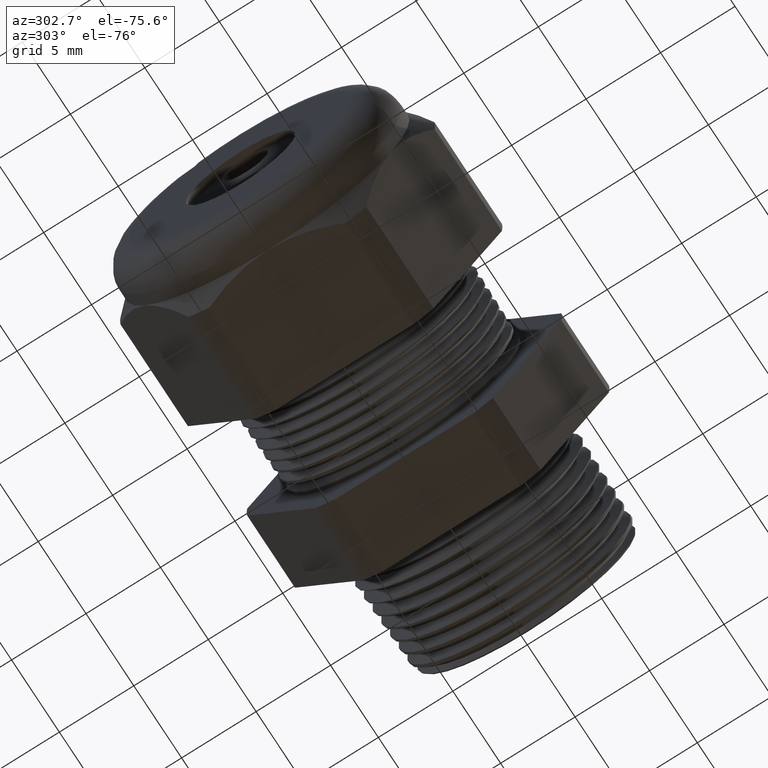
[diagram: clean part render]
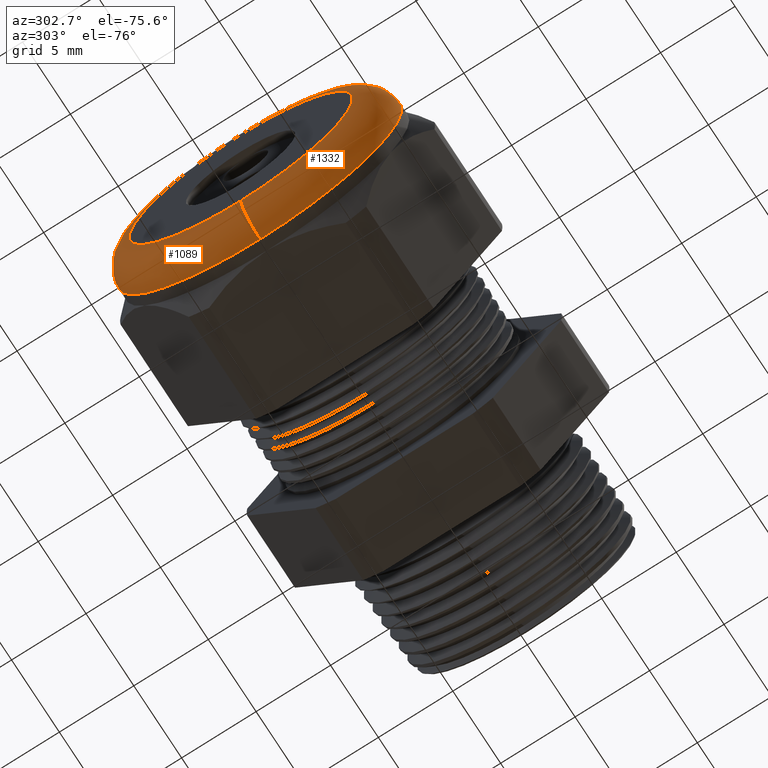
[diagram: same view with one multi-face feature highlighted, each face labeled with its STEP entity id]
A machine part, auxiliary view. The highlighted faces form ONE feature: a constant-radius fillet chain: 2 tangent blend faces with common blend radius 2.032 mm. The faces share edges in the B-rep.
Their STEP definitions:
[1] entity #1332 (Torus):
#1016 = EDGE_CURVE ( 'NONE', #1078, #1084, #3288, .T. ) ;
#1078 = VERTEX_POINT ( 'NONE', #3419 ) ;
#1083 = VERTEX_POINT ( 'NONE', #3412 ) ;
#1084 = VERTEX_POINT ( 'NONE', #3411 ) ;
#1090 = VERTEX_POINT ( 'NONE', #3455 ) ;
#1095 = EDGE_CURVE ( 'NONE', #1090, #1083, #3449, .T. ) ;
#1098 = EDGE_CURVE ( 'NONE', #1083, #1084, #3442, .T. ) ;
#1159 = EDGE_CURVE ( 'NONE', #1078, #1090, #3537, .T. ) ;
#1253 = EDGE_LOOP ( 'NONE', ( #1254, #1255, #1256, #1315 ) ) ;
#1254 = ORIENTED_EDGE ( 'NONE', *, *, #1095, .F. ) ;
#1255 = ORIENTED_EDGE ( 'NONE', *, *, #1159, .F. ) ;
#1256 = ORIENTED_EDGE ( 'NONE', *, *, #1016, .T. ) ;
#1315 = ORIENTED_EDGE ( 'NONE', *, *, #1098, .F. ) ;
#1332 = ADVANCED_FACE ( 'NONE', ( #3814 ), #3813, .T. ) ;
#3284 = DIRECTION ( 'NONE',  ( 0.0000000000000000000, 0.0000000000000000000, -1.000000000000000000 ) ) ;
#3285 = DIRECTION ( 'NONE',  ( 0.0000000000000000000, -1.000000000000000000, 0.0000000000000000000 ) ) ;
#3286 = CARTESIAN_POINT ( 'NONE',  ( -1.100000000000000100, 0.0000000000000000000, 0.2950000000000001000 ) ) ;
#3287 = AXIS2_PLACEMENT_3D ( 'NONE', #3286, #3285, #3284 ) ;
#3288 = CIRCLE ( 'NONE', #3287, 0.08000000000000000200 ) ;
#3411 = CARTESIAN_POINT ( 'NONE',  ( -1.179999999999999900, 0.0000000000000000000, 0.2950000000000001000 ) ) ;
#3412 = CARTESIAN_POINT ( 'NONE',  ( -1.179999999999999900, 4.102566777143634000E-017, -0.2950000000000001000 ) ) ;
#3419 = CARTESIAN_POINT ( 'NONE',  ( -1.100000000000000100, 4.592425496802576100E-017, 0.3750000000000001100 ) ) ;
#3438 = DIRECTION ( 'NONE',  ( 0.0000000000000000000, 0.0000000000000000000, 1.000000000000000000 ) ) ;
#3439 = DIRECTION ( 'NONE',  ( -1.000000000000000000, 0.0000000000000000000, 0.0000000000000000000 ) ) ;
#3440 = CARTESIAN_POINT ( 'NONE',  ( -1.179999999999999900, 0.0000000000000000000, 0.0000000000000000000 ) ) ;
#3441 = AXIS2_PLACEMENT_3D ( 'NONE', #3440, #3439, #3438 ) ;
#3442 = CIRCLE ( 'NONE', #3441, 0.2950000000000001000 ) ;
#3445 = DIRECTION ( 'NONE',  ( 0.0000000000000000000, -1.224646799147353500E-016, 1.000000000000000000 ) ) ;
#3446 = DIRECTION ( 'NONE',  ( 0.0000000000000000000, 1.000000000000000000, 1.224646799147353200E-016 ) ) ;
#3447 = CARTESIAN_POINT ( 'NONE',  ( -1.100000000000000100, 3.612708057484693200E-017, -0.2950000000000001000 ) ) ;
#3448 = AXIS2_PLACEMENT_3D ( 'NONE', #3447, #3446, #3445 ) ;
#3449 = CIRCLE ( 'NONE', #3448, 0.08000000000000000200 ) ;
#3455 = CARTESIAN_POINT ( 'NONE',  ( -1.100000000000000100, 0.0000000000000000000, -0.3750000000000001100 ) ) ;
#3533 = DIRECTION ( 'NONE',  ( 0.0000000000000000000, 0.0000000000000000000, 1.000000000000000000 ) ) ;
#3534 = DIRECTION ( 'NONE',  ( 1.000000000000000000, 0.0000000000000000000, 0.0000000000000000000 ) ) ;
#3535 = CARTESIAN_POINT ( 'NONE',  ( -1.100000000000000100, 0.0000000000000000000, 0.0000000000000000000 ) ) ;
#3536 = AXIS2_PLACEMENT_3D ( 'NONE', #3535, #3534, #3533 ) ;
#3537 = CIRCLE ( 'NONE', #3536, 0.3750000000000001100 ) ;
#3810 = DIRECTION ( 'NONE',  ( 0.0000000000000000000, 0.0000000000000000000, 1.000000000000000000 ) ) ;
#3811 = DIRECTION ( 'NONE',  ( -1.000000000000000000, 0.0000000000000000000, 0.0000000000000000000 ) ) ;
#3812 = AXIS2_PLACEMENT_3D ( 'NONE', #3818, #3811, #3810 ) ;
#3813 = TOROIDAL_SURFACE ( 'NONE', #3812, 0.2950000000000001000, 0.08000000000000000200 ) ;
#3814 = FACE_OUTER_BOUND ( 'NONE', #1253, .T. ) ;
#3818 = CARTESIAN_POINT ( 'NONE',  ( -1.100000000000000100, 0.0000000000000000000, 0.0000000000000000000 ) ) ;
[2] entity #1089 (Torus):
#1015 = ORIENTED_EDGE ( 'NONE', *, *, #1016, .F. ) ;
#1016 = EDGE_CURVE ( 'NONE', #1078, #1084, #3288, .T. ) ;
#1058 = EDGE_LOOP ( 'NONE', ( #1080, #1094, #1092, #1015 ) ) ;
#1078 = VERTEX_POINT ( 'NONE', #3419 ) ;
#1080 = ORIENTED_EDGE ( 'NONE', *, *, #1081, .F. ) ;
#1081 = EDGE_CURVE ( 'NONE', #1090, #1078, #3417, .T. ) ;
#1083 = VERTEX_POINT ( 'NONE', #3412 ) ;
#1084 = VERTEX_POINT ( 'NONE', #3411 ) ;
#1089 = ADVANCED_FACE ( 'NONE', ( #3465 ), #3460, .T. ) ;
#1090 = VERTEX_POINT ( 'NONE', #3455 ) ;
#1092 = ORIENTED_EDGE ( 'NONE', *, *, #1093, .F. ) ;
#1093 = EDGE_CURVE ( 'NONE', #1084, #1083, #3454, .T. ) ;
#1094 = ORIENTED_EDGE ( 'NONE', *, *, #1095, .T. ) ;
#1095 = EDGE_CURVE ( 'NONE', #1090, #1083, #3449, .T. ) ;
#3284 = DIRECTION ( 'NONE',  ( 0.0000000000000000000, 0.0000000000000000000, -1.000000000000000000 ) ) ;
#3285 = DIRECTION ( 'NONE',  ( 0.0000000000000000000, -1.000000000000000000, 0.0000000000000000000 ) ) ;
#3286 = CARTESIAN_POINT ( 'NONE',  ( -1.100000000000000100, 0.0000000000000000000, 0.2950000000000001000 ) ) ;
#3287 = AXIS2_PLACEMENT_3D ( 'NONE', #3286, #3285, #3284 ) ;
#3288 = CIRCLE ( 'NONE', #3287, 0.08000000000000000200 ) ;
#3411 = CARTESIAN_POINT ( 'NONE',  ( -1.179999999999999900, 0.0000000000000000000, 0.2950000000000001000 ) ) ;
#3412 = CARTESIAN_POINT ( 'NONE',  ( -1.179999999999999900, 4.102566777143634000E-017, -0.2950000000000001000 ) ) ;
#3413 = DIRECTION ( 'NONE',  ( 0.0000000000000000000, 0.0000000000000000000, 1.000000000000000000 ) ) ;
#3414 = DIRECTION ( 'NONE',  ( 1.000000000000000000, 0.0000000000000000000, 0.0000000000000000000 ) ) ;
#3415 = CARTESIAN_POINT ( 'NONE',  ( -1.100000000000000100, 0.0000000000000000000, 0.0000000000000000000 ) ) ;
#3416 = AXIS2_PLACEMENT_3D ( 'NONE', #3415, #3414, #3413 ) ;
#3417 = CIRCLE ( 'NONE', #3416, 0.3750000000000001100 ) ;
#3419 = CARTESIAN_POINT ( 'NONE',  ( -1.100000000000000100, 4.592425496802576100E-017, 0.3750000000000001100 ) ) ;
#3445 = DIRECTION ( 'NONE',  ( 0.0000000000000000000, -1.224646799147353500E-016, 1.000000000000000000 ) ) ;
#3446 = DIRECTION ( 'NONE',  ( 0.0000000000000000000, 1.000000000000000000, 1.224646799147353200E-016 ) ) ;
#3447 = CARTESIAN_POINT ( 'NONE',  ( -1.100000000000000100, 3.612708057484693200E-017, -0.2950000000000001000 ) ) ;
#3448 = AXIS2_PLACEMENT_3D ( 'NONE', #3447, #3446, #3445 ) ;
#3449 = CIRCLE ( 'NONE', #3448, 0.08000000000000000200 ) ;
#3450 = DIRECTION ( 'NONE',  ( 0.0000000000000000000, 0.0000000000000000000, 1.000000000000000000 ) ) ;
#3451 = DIRECTION ( 'NONE',  ( -1.000000000000000000, 0.0000000000000000000, 0.0000000000000000000 ) ) ;
#3452 = CARTESIAN_POINT ( 'NONE',  ( -1.179999999999999900, 0.0000000000000000000, 0.0000000000000000000 ) ) ;
#3453 = AXIS2_PLACEMENT_3D ( 'NONE', #3452, #3451, #3450 ) ;
#3454 = CIRCLE ( 'NONE', #3453, 0.2950000000000001000 ) ;
#3455 = CARTESIAN_POINT ( 'NONE',  ( -1.100000000000000100, 0.0000000000000000000, -0.3750000000000001100 ) ) ;
#3456 = DIRECTION ( 'NONE',  ( 0.0000000000000000000, 0.0000000000000000000, 1.000000000000000000 ) ) ;
#3457 = DIRECTION ( 'NONE',  ( -1.000000000000000000, 0.0000000000000000000, 0.0000000000000000000 ) ) ;
#3458 = CARTESIAN_POINT ( 'NONE',  ( -1.100000000000000100, 0.0000000000000000000, 0.0000000000000000000 ) ) ;
#3459 = AXIS2_PLACEMENT_3D ( 'NONE', #3458, #3457, #3456 ) ;
#3460 = TOROIDAL_SURFACE ( 'NONE', #3459, 0.2950000000000001000, 0.08000000000000000200 ) ;
#3465 = FACE_OUTER_BOUND ( 'NONE', #1058, .T. ) ;